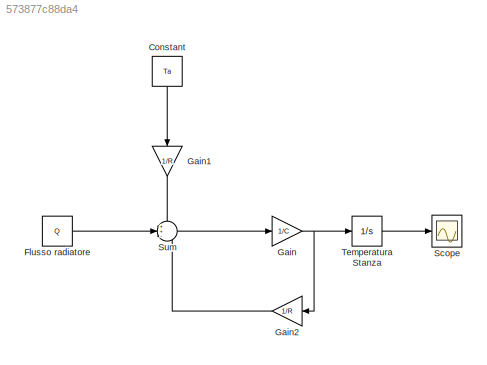
MODEL slx_573877c88da4
KIND model
CONFIG AbsTol = auto
CONFIG EnableMultiTasking = off
CONFIG FixedStep = auto
CONFIG MaxStep = auto
CONFIG MinStep = auto
CONFIG RelTol = 1e-3
CONFIG SampleTimeConstraint = Unconstrained
CONFIG SolverName = VariableStepAuto
CONFIG StartTime = 0.0
CONFIG StopTime = 100
BLOCK [Constant] Constant
  NameLocation = left
  Value = Ta
BLOCK [Constant] Flusso radiatore
  Value = Q
BLOCK [Gain] Gain
  Gain = 1/C
BLOCK [Gain] Gain1
  Gain = 1/R
  NameLocation = left
BLOCK [Gain] Gain2
  Gain = 1/R
  NameLocation = top
BLOCK [Scope] Scope
  Floating = off
  NumInputPorts = 1
  ScopeSpecificationString = Simulink.scopes.TimeScopeBlockCfg('CurrentConfiguration', extmgr.ConfigurationSet(extmgr.Configuration('Core','General UI',true),extmgr.Configuration('Core','Source UI',true),extmgr.Configuration('Sources','WiredSimulink',true,'DataLogging',true,'DataLoggingVariableName','RoomTemp','DataLoggingSaveFormat','StructureWithTime'),extmgr.Configuration('Visuals','Time Domain',true,'SerializedDisplays',{...<+1456ch>
BLOCK [Sum] Sum
  Inputs = ++-
BLOCK [Integrator] Temperatura Stanza
LINE Constant:1 -> Gain1:1
LINE Flusso radiatore:1 -> Sum:2
LINE Gain1:1 -> Sum:1
LINE Gain2:1 -> Sum:3
NET Gain:1 -> Gain2:1, Temperatura Stanza:1
LINE Sum:1 -> Gain:1
LINE Temperatura Stanza:1 -> Scope:1
note: NET lines group one-source signal fan-out (src -> all destinations, sorted); 1:1 wires keep LINE
